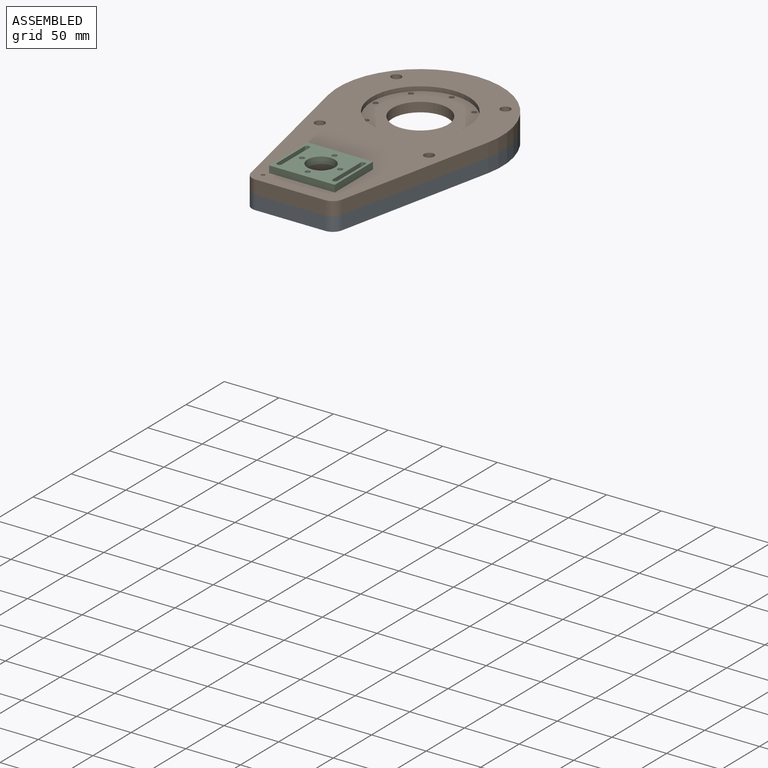
[diagram: assembled view]
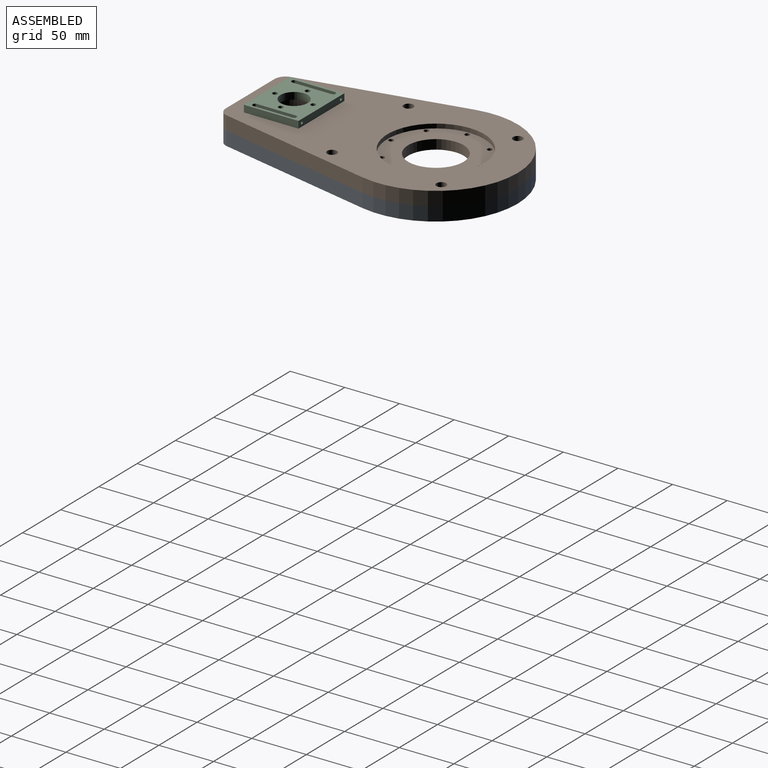
[diagram: assembled view, second angle]
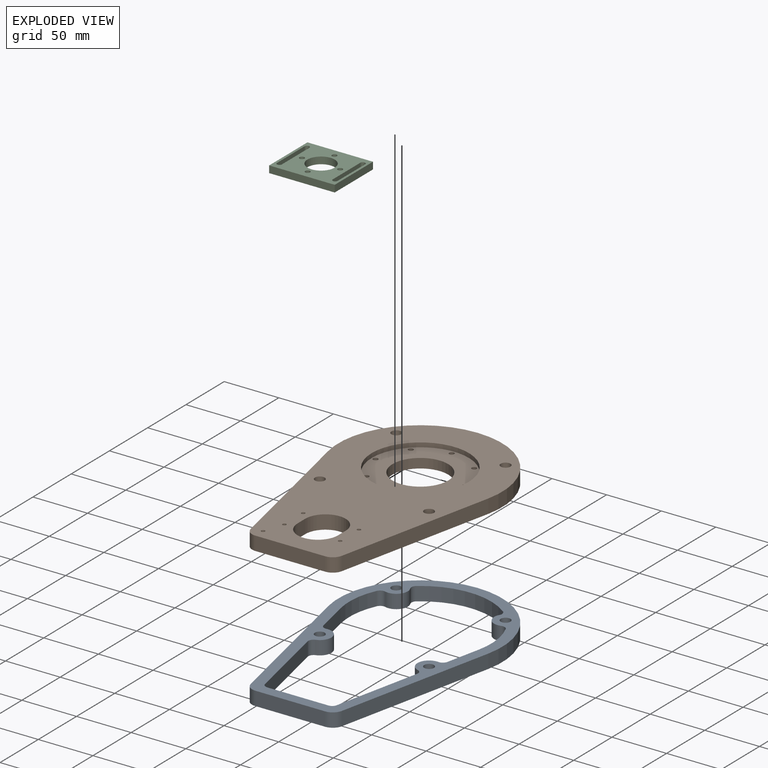
[diagram: exploded view]
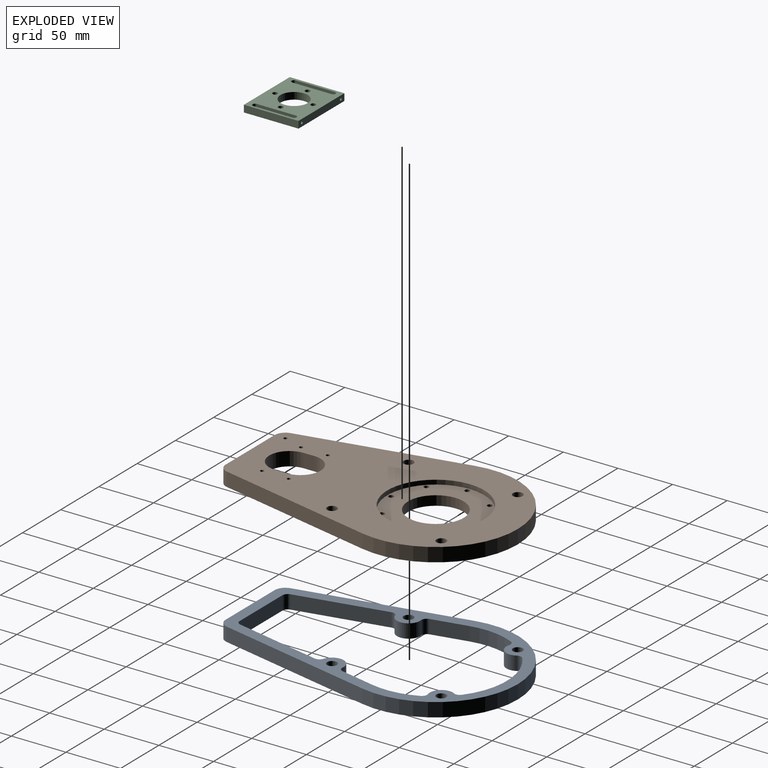
[diagram: exploded view, second angle]
ASSEMBLY  parts=3 mates=4
PART A: 34 faces, bbox 150x245x12.7 mm
  f0: cylinder r=75mm len=150mm, axis (0,0,-1), area 3397.7mm2, adj f1,f31,f32,f33
  f1: plane 146.27x31.6mm, normal (-0.98,-0.21,0), area 1900.5mm2, adj f0,f2,f32,f33
  f2: cylinder r=10mm len=12.7mm, axis (0,0,-1), area 172.5mm2, adj f1,f3,f32,f33
  f3: plane 63.86x12.7mm, normal (0,-1,0), area 811mm2, adj f2,f4,f32,f33
  f4: cylinder r=10mm len=12.7mm, axis (0,0,-1), area 172.5mm2, adj f3,f31,f32,f33
  f5: cylinder r=5mm len=12.7mm, axis (0,0,-1), area 99.7mm2, adj f6,f26,f32,f33
  f6: cylinder r=10.61mm len=20.55mm, axis (0,0,-1), area 384.1mm2, adj f5,f7,f32,f33
  f7: cylinder r=5mm len=12.7mm, axis (0,0,-1), area 99.7mm2, adj f6,f8,f32,f33
  f8: plane 80.18x17.32mm, normal (-0.98,0.21,0), area 1041.7mm2, adj f7,f9,f32,f33
  f9: cylinder r=5mm len=12.7mm, axis (0,0,-1), area 86.2mm2, adj f8,f10,f32,f33
  f10: plane 55.79x12.7mm, normal (0,1,0), area 708.5mm2, adj f9,f11,f32,f33
  f11: cylinder r=5mm len=12.7mm, axis (0,0,-1), area 86.2mm2, adj f10,f12,f32,f33
  f12: plane 80.18x17.32mm, normal (0.98,0.21,0), area 1041.7mm2, adj f11,f13,f32,f33
  f13: cylinder r=5mm len=12.7mm, axis (0,0,-1), area 99.7mm2, adj f12,f14,f32,f33
  f14: cylinder r=10.61mm len=20.55mm, axis (0,0,-1), area 384.1mm2, adj f13,f15,f32,f33
  f15: cylinder r=5mm len=12.7mm, axis (0,0,-1), area 99.7mm2, adj f14,f16,f32,f33
  f16: plane 31.85x12.7mm, normal (0.98,0.21,0), area 413.9mm2, adj f15,f17,f32,f33
  f17: cylinder r=65mm len=40.98mm, axis (0,0,-1), area 532.8mm2, adj f16,f18,f32,f33
  f18: cylinder r=5mm len=12.7mm, axis (0,0,-1), area 90.8mm2, adj f17,f19,f32,f33
  f19: cylinder r=10.5mm len=15.66mm, axis (0,0,-1), area 317mm2, adj f18,f20,f32,f33
  f20: cylinder r=5mm len=12.7mm, axis (0,0,-1), area 90.8mm2, adj f19,f21,f32,f33
  f21: cylinder r=65mm len=79.09mm, axis (0,0,-1), area 1079.8mm2, adj f20,f22,f32,f33
  f22: cylinder r=5mm len=12.7mm, axis (0,0,-1), area 90.8mm2, adj f21,f23,f32,f33
  f23: cylinder r=10.5mm len=15.66mm, axis (0,0,-1), area 317mm2, adj f22,f24,f32,f33
  f24: cylinder r=5mm len=12.7mm, axis (0,0,-1), area 90.8mm2, adj f23,f25,f32,f33
  f25: cylinder r=65mm len=40.98mm, axis (0,0,-1), area 532.8mm2, adj f24,f26,f32,f33
  f26: plane 31.85x12.7mm, normal (-0.98,0.21,0), area 413.9mm2, adj f5,f25,f32,f33
  f27: cylinder r=4.5mm len=12.7mm, axis (0,0,-1), area 359.1mm2, adj f32,f33
  f28: cylinder r=4.5mm len=12.7mm, axis (0,0,-1), area 359.1mm2, adj f32,f33
  f29: cylinder r=4.5mm len=12.7mm, axis (0,0,-1), area 359.1mm2, adj f32,f33
  f30: cylinder r=4.5mm len=12.7mm, axis (0,0,-1), area 359.1mm2, adj f32,f33
  f31: plane 146.27x31.6mm, normal (0.98,-0.21,0), area 1900.5mm2, adj f0,f4,f32,f33
  f32: plane 245x150mm, normal (0,0,1), area 6930.5mm2, adj f0,f1,f2,f3,f4,f5,f6,f7
  f33: plane 245x150mm, normal (0,0,-1), area 6930.5mm2, adj f0,f1,f2,f3,f4,f5,f6,f7
PART B: 48 faces, bbox 150x245x12.7 mm
  f0: cylinder r=2.25mm len=4.7mm, axis (0,0,-1), area 66.4mm2, adj f31,f46
  f1: cylinder r=2.25mm len=4.7mm, axis (0,0,-1), area 66.4mm2, adj f31,f44
  f2: cylinder r=2.25mm len=4.7mm, axis (0,0,-1), area 66.4mm2, adj f31,f42
  f3: cylinder r=2.25mm len=4.7mm, axis (0,0,-1), area 66.4mm2, adj f31,f40
  f4: cylinder r=2.25mm len=4.7mm, axis (0,0,-1), area 66.4mm2, adj f31,f38
  f5: cylinder r=2.25mm len=4.7mm, axis (0,0,-1), area 66.4mm2, adj f31,f36
  f6: cylinder r=2.25mm len=4.7mm, axis (0,0,-1), area 66.4mm2, adj f31,f34
  f7: cylinder r=2.25mm len=4.7mm, axis (0,0,-1), area 66.4mm2, adj f31,f32
  f8: plane 12.7x10mm, normal (1,0,0), area 127mm2, adj f9,f25,f28,f29
  f9: cylinder r=18.5mm len=37mm, axis (0,0,-1), area 738.1mm2, adj f8,f10,f28,f29
  f10: plane 12.7x10mm, normal (-1,0,0), area 127mm2, adj f9,f25,f28,f29
  f11: plane 146.27x31.6mm, normal (0.98,-0.21,0), area 1900.5mm2, adj f12,f26,f28,f29
  f12: cylinder r=75mm len=150mm, axis (0,0,-1), area 3397.7mm2, adj f11,f13,f28,f29
  f13: plane 146.27x31.6mm, normal (-0.98,-0.21,0), area 1900.5mm2, adj f12,f14,f28,f29
  f14: cylinder r=10mm len=12.7mm, axis (0,0,-1), area 172.5mm2, adj f13,f15,f28,f29
  f15: plane 63.86x12.7mm, normal (0,-1,0), area 811mm2, adj f14,f26,f28,f29
  f16: cylinder r=1.65mm len=12.7mm, axis (0,0,-1), area 131.7mm2, adj f28,f29
  f17: cylinder r=1.65mm len=12.7mm, axis (0,0,-1), area 131.7mm2, adj f28,f29
  f18: cylinder r=1.65mm len=12.7mm, axis (0,0,-1), area 131.7mm2, adj f28,f29
  f19: cylinder r=1.65mm len=12.7mm, axis (0,0,-1), area 131.7mm2, adj f28,f29
  f20: cylinder r=4.5mm len=12.7mm, axis (0,0,-1), area 359.1mm2, adj f28,f29
  f21: cylinder r=4.5mm len=12.7mm, axis (0,0,-1), area 359.1mm2, adj f28,f29
  f22: cylinder r=4.5mm len=12.7mm, axis (0,0,-1), area 359.1mm2, adj f28,f29
  f23: cylinder r=4.5mm len=12.7mm, axis (0,0,-1), area 359.1mm2, adj f28,f29
  f24: cylinder r=44.5mm len=89mm, axis (0,0,-1), area 1118.4mm2, adj f28,f31
  f25: cylinder r=18.5mm len=37mm, axis (0,0,-1), area 738.1mm2, adj f8,f10,f28,f29
  f26: cylinder r=10mm len=12.7mm, axis (0,0,-1), area 172.5mm2, adj f11,f15,f28,f29
  f27: cylinder r=1.65mm len=12.7mm, axis (0,0,-1), area 131.7mm2, adj f28,f29
  f28: plane 245x150mm, normal (0,0,1), area 20672.4mm2, adj f8,f9,f10,f11,f12,f13,f14,f15
  f29: plane 245x150mm, normal (0,0,-1), area 24423mm2, adj f8,f9,f10,f11,f12,f13,f14,f15
  f30: cylinder r=25.5mm len=51mm, axis (0,0,-1), area 1393.9mm2, adj f29,f31
  f31: plane 89x89mm, normal (0,0,1), area 4051.1mm2, adj f0,f1,f2,f3,f4,f5,f6,f7
  f32: plane 8.25x8.25mm, normal (0,0,-1), area 37.6mm2, adj f7,f33
  f33: cylinder r=4.12mm len=8.25mm, axis (0,0,-1), area 103.7mm2, adj f29,f32
  f34: plane 8.25x8.25mm, normal (0,0,-1), area 37.6mm2, adj f6,f35
  f35: cylinder r=4.12mm len=8.25mm, axis (0,0,-1), area 103.7mm2, adj f29,f34
  f36: plane 8.25x8.25mm, normal (0,0,-1), area 37.6mm2, adj f5,f37
  f37: cylinder r=4.12mm len=8.25mm, axis (0,0,-1), area 103.7mm2, adj f29,f36
  f38: plane 8.25x8.25mm, normal (0,0,-1), area 37.6mm2, adj f4,f39
  f39: cylinder r=4.12mm len=8.25mm, axis (0,0,-1), area 103.7mm2, adj f29,f38
  f40: plane 8.25x8.25mm, normal (0,0,-1), area 37.6mm2, adj f3,f41
  f41: cylinder r=4.12mm len=8.25mm, axis (0,0,-1), area 103.7mm2, adj f29,f40
  f42: plane 8.25x8.25mm, normal (0,0,-1), area 37.6mm2, adj f2,f43
  f43: cylinder r=4.12mm len=8.25mm, axis (0,0,-1), area 103.7mm2, adj f29,f42
  f44: plane 8.25x8.25mm, normal (0,0,-1), area 37.6mm2, adj f1,f45
  f45: cylinder r=4.12mm len=8.25mm, axis (0,0,-1), area 103.7mm2, adj f29,f44
  f46: plane 8.25x8.25mm, normal (0,0,-1), area 37.6mm2, adj f0,f47
  f47: cylinder r=4.12mm len=8.25mm, axis (0,0,-1), area 103.7mm2, adj f29,f46
PART C: 21 faces, bbox 60x50x6.4 mm
  f0: cylinder r=2.25mm len=6.35mm, axis (0,0,-1), area 39.8mm2, adj f5,f15,f17,f18,f20
  f1: cylinder r=2.25mm len=6.35mm, axis (0,0,-1), area 39.8mm2, adj f2,f4,f17,f18,f19
  f2: plane 36x6.35mm, normal (1,0,0), area 228.6mm2, adj f1,f3,f17,f18
  f3: cylinder r=2.25mm len=6.35mm, axis (0,0,-1), area 44.9mm2, adj f2,f4,f17,f18
  f4: plane 36x6.35mm, normal (-1,0,0), area 228.6mm2, adj f1,f3,f17,f18
  f5: plane 36x6.35mm, normal (1,0,0), area 228.6mm2, adj f0,f6,f17,f18
  f6: cylinder r=2.25mm len=6.35mm, axis (0,0,-1), area 44.9mm2, adj f5,f15,f17,f18
  f7: plane 50x6.35mm, normal (1,0,0), area 317.5mm2, adj f8,f16,f17,f18
  f8: plane 60x6.35mm, normal (0,1,0), area 381mm2, adj f7,f9,f17,f18
  f9: plane 50x6.35mm, normal (-1,0,0), area 317.5mm2, adj f8,f16,f17,f18
  f10: cylinder r=2.25mm len=6.35mm, axis (0,0,-1), area 89.8mm2, adj f17,f18
  f11: cylinder r=2.25mm len=6.35mm, axis (0,0,-1), area 89.8mm2, adj f17,f18
  f12: cylinder r=2.25mm len=6.35mm, axis (0,0,-1), area 89.8mm2, adj f17,f18
  f13: cylinder r=2.25mm len=6.35mm, axis (0,0,-1), area 89.8mm2, adj f17,f18
  f14: cylinder r=12.5mm len=25mm, axis (0,0,-1), area 498.7mm2, adj f17,f18
  f15: plane 36x6.35mm, normal (-1,0,0), area 228.6mm2, adj f0,f6,f17,f18
  f16: plane 60x6.35mm, normal (0,-1,0), area 371.2mm2, adj f7,f9,f17,f18,f19,f20
  f17: plane 60x50mm, normal (0,0,1), area 2089.7mm2, adj f0,f1,f2,f3,f4,f5,f6,f7
  f18: plane 60x50mm, normal (0,0,-1), area 2089.7mm2, adj f0,f1,f2,f3,f4,f5,f6,f7
  f19: cylinder r=1.25mm len=5.13mm, axis (0,-1,0), area 38.8mm2, adj f1,f16
  f20: cylinder r=1.25mm len=5.13mm, axis (0,-1,0), area 38.8mm2, adj f0,f16
PLACE A t=(-13.31,4.22,-17.13)mm
PLACE B t=(-13.31,4.22,-4.43)mm
PLACE C rot(axis=(0,0,1),180deg) t=(-13.31,-125.53,8.27)mm
MATE fastened A.f19 <-> B.f23  axis (0,0,1) through (-63.31,44.22,8.27)mm
MATE fastened C.f1 <-> B.f28  axis (0,0,-1) through (12.19,-107.53,8.27)mm
MATE fastened C.f0 <-> B.f28  axis (0,0,-1) through (-38.81,-107.53,8.27)mm
MATE fastened A.f23 <-> B.f22  axis (0,0,1) through (36.69,44.22,8.27)mm
